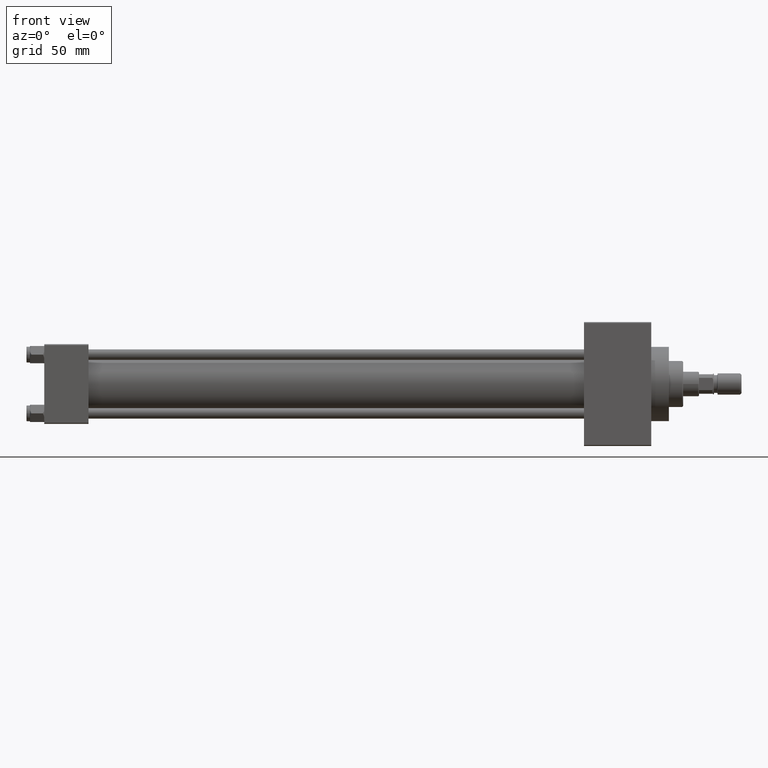
[diagram: clean part render]
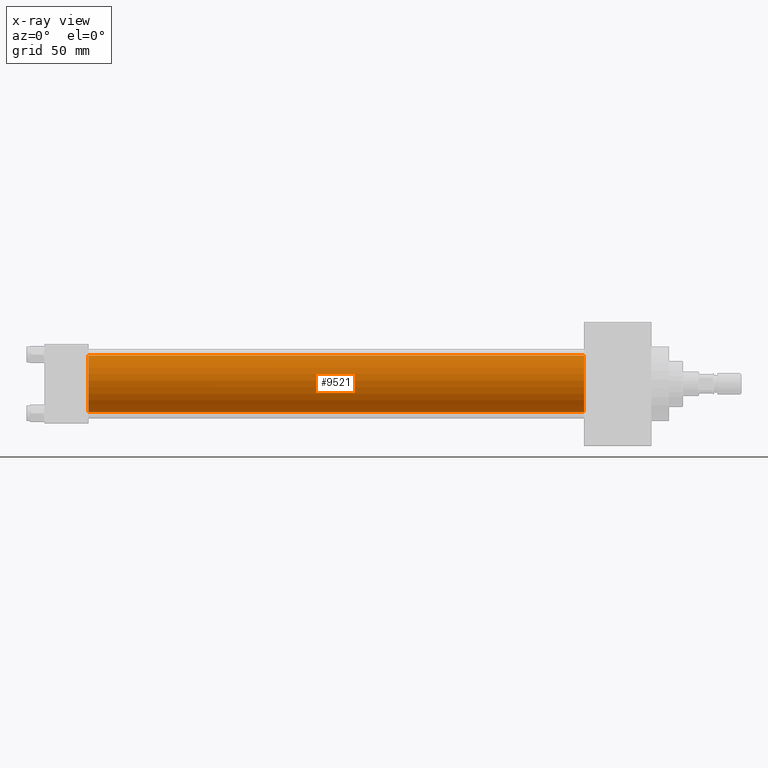
[diagram: x-ray — body ghosted, one internal face saturated and labeled with its STEP entity id]
A machine part, front view, then the same camera in x-ray: the body is ghosted and one INTERNAL B-rep face — a face not visible from any outside direction — is saturated and labeled: STEP entity #9521.
In plain terms, the highlighted cylindrical surface (edge-blend (fillet) strip) has radius 16 mm, axis along (-1, -0, -0).
Its self-contained STEP definition (entity closure, byte-faithful):
#686 = ORIENTED_EDGE ( 'NONE', *, *, #19059, .T. ) ;
#1165 = AXIS2_PLACEMENT_3D ( 'NONE', #31911, #39687, #20898 ) ;
#1325 = VECTOR ( 'NONE', #9049, 1000.000000000000000 ) ;
#4198 = EDGE_CURVE ( 'NONE', #20374, #43083, #35656, .T. ) ;
#4240 = CARTESIAN_POINT ( 'NONE',  ( 25.00000000000000000, -2.602085213965210642E-15, 0.000000000000000000 ) ) ;
#4989 = DIRECTION ( 'NONE',  ( 1.000000000000000000, 0.000000000000000000, 0.000000000000000000 ) ) ;
#5790 = EDGE_CURVE ( 'NONE', #20374, #33092, #27811, .T. ) ;
#5951 = CARTESIAN_POINT ( 'NONE',  ( 25.00000000000000000, -2.602085213965210642E-15, 16.00000000000000000 ) ) ;
#5955 = CARTESIAN_POINT ( 'NONE',  ( 305.0000000000000568, -6.426503353294456087E-16, -16.00000000000000000 ) ) ;
#6173 = VECTOR ( 'NONE', #36262, 1000.000000000000000 ) ;
#8622 = VERTEX_POINT ( 'NONE', #21755 ) ;
#9005 = DIRECTION ( 'NONE',  ( 0.000000000000000000, 0.000000000000000000, -1.000000000000000000 ) ) ;
#9049 = DIRECTION ( 'NONE',  ( -1.000000000000000000, -0.000000000000000000, -0.000000000000000000 ) ) ;
#9521 = ADVANCED_FACE ( 'NONE', ( #47246 ), #35939, .F. ) ;
#10576 = CARTESIAN_POINT ( 'NONE',  ( 305.0000000000000568, -2.602085213965210642E-15, 0.000000000000000000 ) ) ;
#12541 = CARTESIAN_POINT ( 'NONE',  ( 305.0000000000000568, -2.602085213965210642E-15, 16.00000000000000000 ) ) ;
#15375 = ORIENTED_EDGE ( 'NONE', *, *, #34621, .F. ) ;
#15651 = CARTESIAN_POINT ( 'NONE',  ( 305.0000000000000568, -6.426503353294456087E-16, -16.00000000000000000 ) ) ;
#16853 = CARTESIAN_POINT ( 'NONE',  ( 305.0000000000000568, -2.602085213965210642E-15, 16.00000000000000000 ) ) ;
#18070 = DIRECTION ( 'NONE',  ( 1.000000000000000000, 0.000000000000000000, 0.000000000000000000 ) ) ;
#19059 = EDGE_CURVE ( 'NONE', #43083, #8622, #47330, .T. ) ;
#20374 = VERTEX_POINT ( 'NONE', #16853 ) ;
#20898 = DIRECTION ( 'NONE',  ( 0.000000000000000000, 0.000000000000000000, 1.000000000000000000 ) ) ;
#20990 = AXIS2_PLACEMENT_3D ( 'NONE', #4240, #4989, #9005 ) ;
#21755 = CARTESIAN_POINT ( 'NONE',  ( 25.00000000000000000, -6.426503353294456087E-16, -16.00000000000000000 ) ) ;
#27811 = LINE ( 'NONE', #12541, #1325 ) ;
#31911 = CARTESIAN_POINT ( 'NONE',  ( 305.0000000000000568, -2.602085213965210642E-15, 0.000000000000000000 ) ) ;
#33092 = VERTEX_POINT ( 'NONE', #5951 ) ;
#34621 = EDGE_CURVE ( 'NONE', #33092, #8622, #41808, .T. ) ;
#35656 = CIRCLE ( 'NONE', #48473, 16.00000000000000000 ) ;
#35939 = CYLINDRICAL_SURFACE ( 'NONE', #1165, 16.00000000000000000 ) ;
#36262 = DIRECTION ( 'NONE',  ( -1.000000000000000000, -0.000000000000000000, -0.000000000000000000 ) ) ;
#39687 = DIRECTION ( 'NONE',  ( -1.000000000000000000, -0.000000000000000000, -0.000000000000000000 ) ) ;
#39733 = ORIENTED_EDGE ( 'NONE', *, *, #4198, .T. ) ;
#40214 = EDGE_LOOP ( 'NONE', ( #39733, #686, #15375, #41831 ) ) ;
#41387 = DIRECTION ( 'NONE',  ( 0.000000000000000000, 0.000000000000000000, -1.000000000000000000 ) ) ;
#41808 = CIRCLE ( 'NONE', #20990, 16.00000000000000000 ) ;
#41831 = ORIENTED_EDGE ( 'NONE', *, *, #5790, .F. ) ;
#43083 = VERTEX_POINT ( 'NONE', #15651 ) ;
#47246 = FACE_OUTER_BOUND ( 'NONE', #40214, .T. ) ;
#47330 = LINE ( 'NONE', #5955, #6173 ) ;
#48473 = AXIS2_PLACEMENT_3D ( 'NONE', #10576, #18070, #41387 ) ;